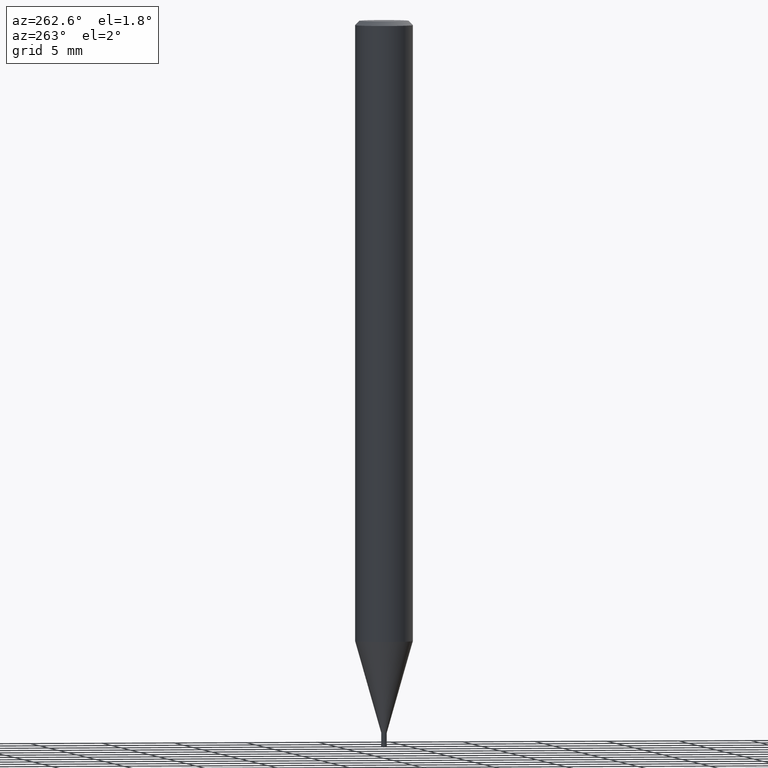
[diagram: clean part render]
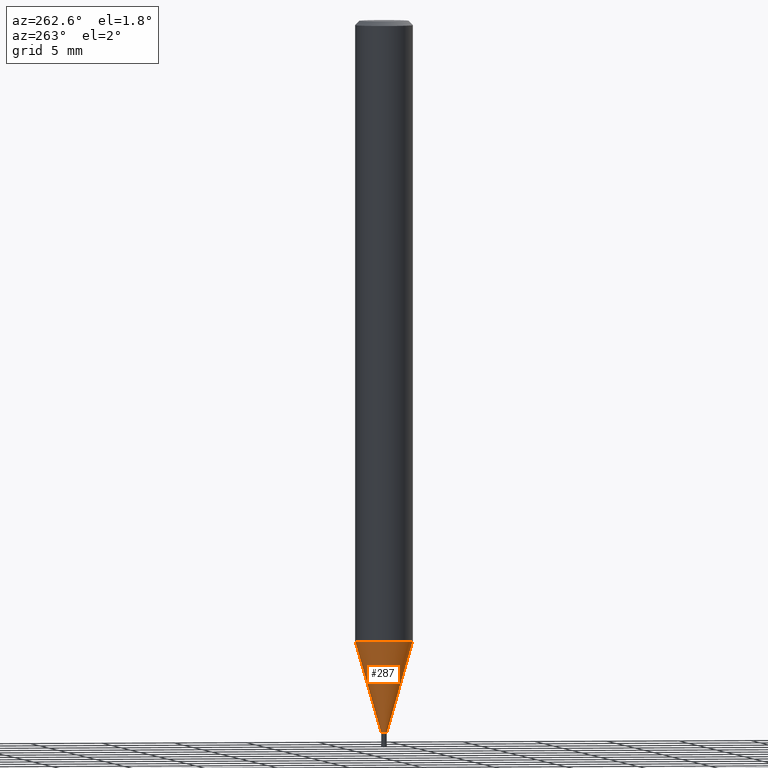
[diagram: same view with one face highlighted and labeled with its STEP entity id]
A machine part, auxiliary view. The second image highlights one B-rep face of the part: STEP entity #287.
In plain terms, the highlighted conical surface has half-angle 15.999 deg.
Its self-contained STEP definition (entity closure, byte-faithful):
#211=EDGE_CURVE('',#297,#227,#458,.T.);
#227=VERTEX_POINT('',#475);
#263=VERTEX_POINT('',#516);
#275=EDGE_CURVE('',#227,#327,#529,.T.);
#287=ADVANCED_FACE('',(#541),#542,.T.);
#295=EDGE_CURVE('',#263,#327,#553,.T.);
#297=VERTEX_POINT('',#555);
#323=EDGE_CURVE('',#263,#297,#583,.T.);
#327=VERTEX_POINT('',#587);
#458=CIRCLE('',#736,1.99995);
#475=CARTESIAN_POINT('',(0.0,1.99995,-42.686));
#516=CARTESIAN_POINT('',(2.35675492793117E-017,-0.19245,-48.99));
#529=LINE('',#825,#826);
#541=FACE_OUTER_BOUND('',#843,.T.);
#542=CONICAL_SURFACE('',#844,1.0962,0.279231732547063);
#553=CIRCLE('',#856,0.19245);
#555=CARTESIAN_POINT('',(2.44915147732706E-016,-1.99995,-42.686));
#583=LINE('',#895,#896);
#587=CARTESIAN_POINT('',(0.0,0.19245,-48.99));
#736=AXIS2_PLACEMENT_3D('',#1062,#1063,#1064);
#825=CARTESIAN_POINT('',(-1.34241348506009E-016,1.0962,-45.838));
#826=VECTOR('',#1143,1.0);
#843=EDGE_LOOP('',(#1155,#1156,#1157,#1158));
#844=AXIS2_PLACEMENT_3D('',#1159,#1160,#1161);
#856=AXIS2_PLACEMENT_3D('',#1186,#1187,#1188);
#895=CARTESIAN_POINT('',(1.34241348506009E-016,-1.0962,-45.838));
#896=VECTOR('',#1219,1.0);
#1062=CARTESIAN_POINT('',(0.0,0.0,-42.686));
#1063=DIRECTION('',(0.0,0.0,-1.0));
#1064=DIRECTION('',(0.0,1.0,0.0));
#1143=DIRECTION('',(3.375225981805E-017,-0.275617219465657,-0.961267469715906));
#1155=ORIENTED_EDGE('',*,*,#275,.T.);
#1156=ORIENTED_EDGE('',*,*,#295,.F.);
#1157=ORIENTED_EDGE('',*,*,#323,.T.);
#1158=ORIENTED_EDGE('',*,*,#211,.T.);
#1159=CARTESIAN_POINT('',(0.0,0.0,-45.838));
#1160=DIRECTION('',(-0.0,-0.0,1.0));
#1161=DIRECTION('',(0.0,1.0,0.0));
#1186=CARTESIAN_POINT('',(0.0,0.0,-48.99));
#1187=DIRECTION('',(0.0,0.0,-1.0));
#1188=DIRECTION('',(0.0,1.0,0.0));
#1219=DIRECTION('',(3.375225981805E-017,-0.275617219465657,0.961267469715906));